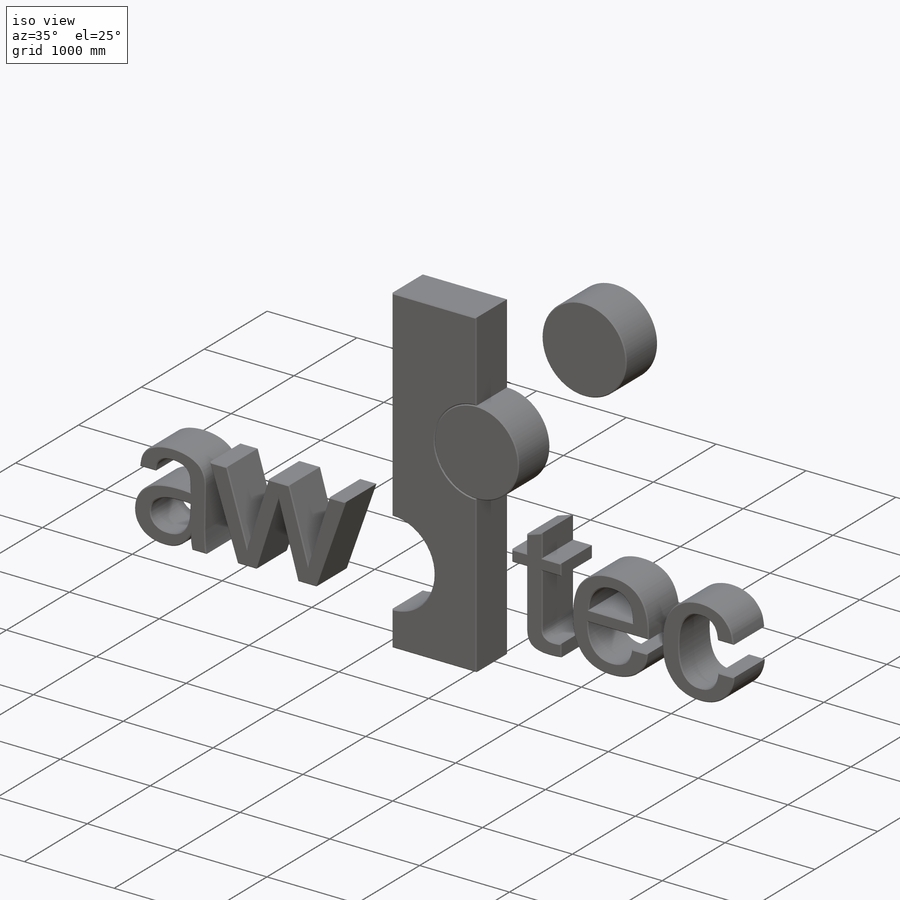
[diagram: iso view]
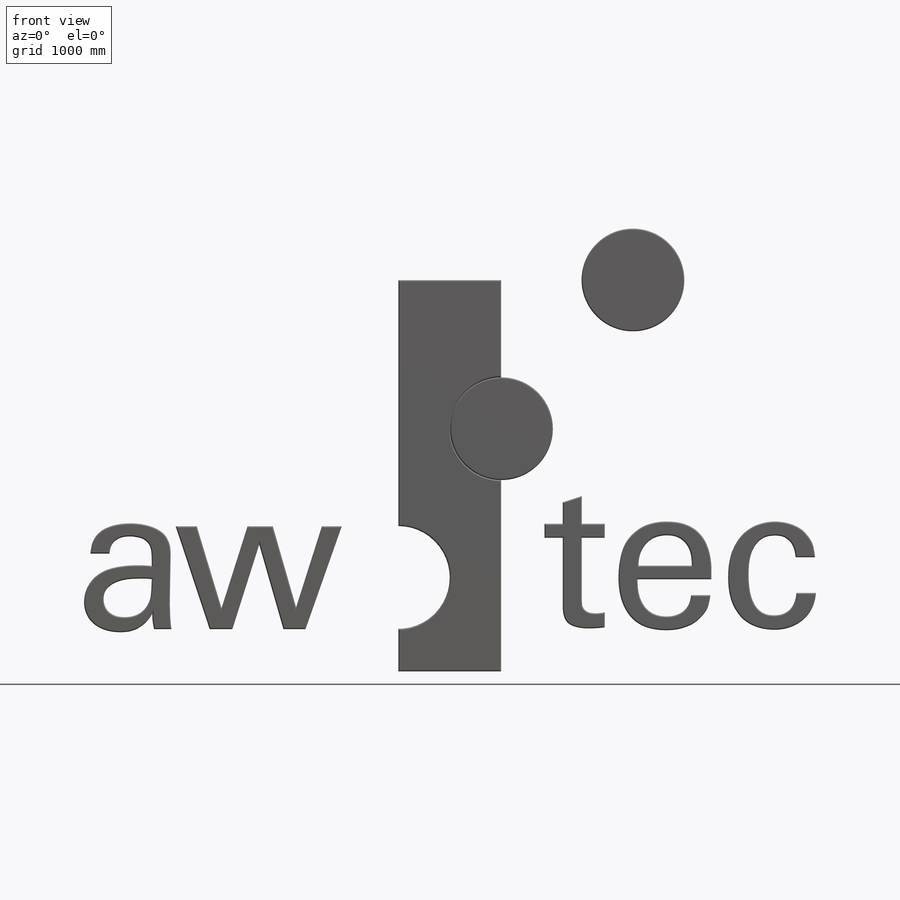
[diagram: front view]
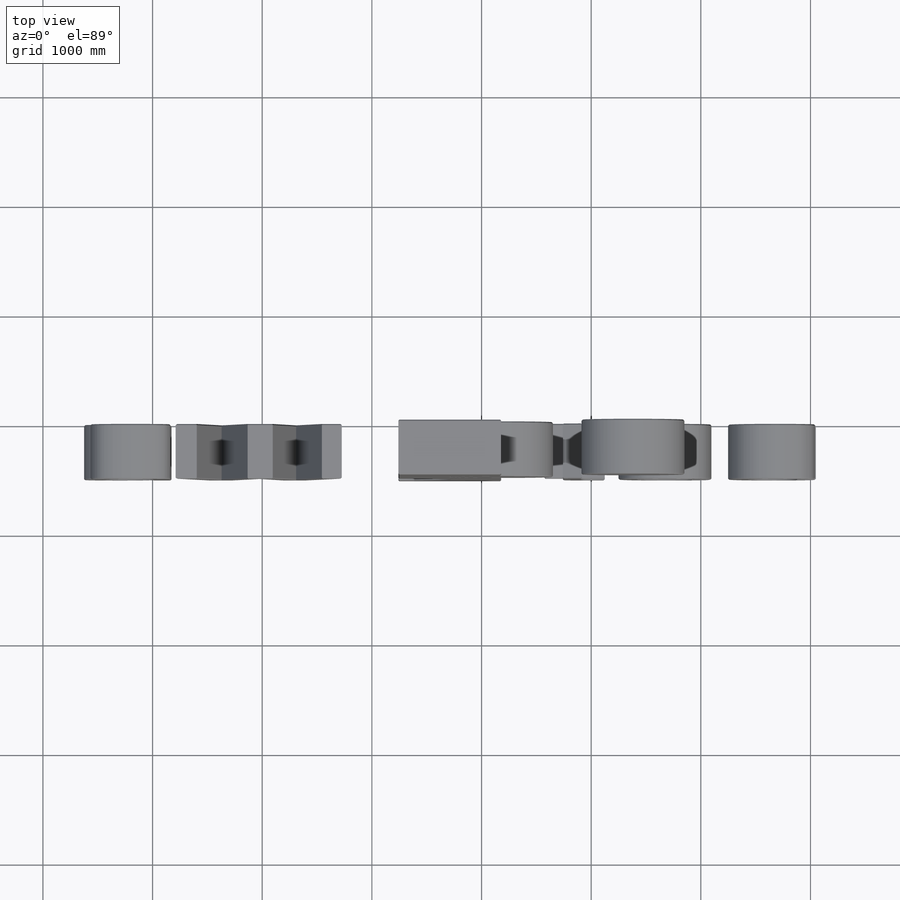
[diagram: top view]
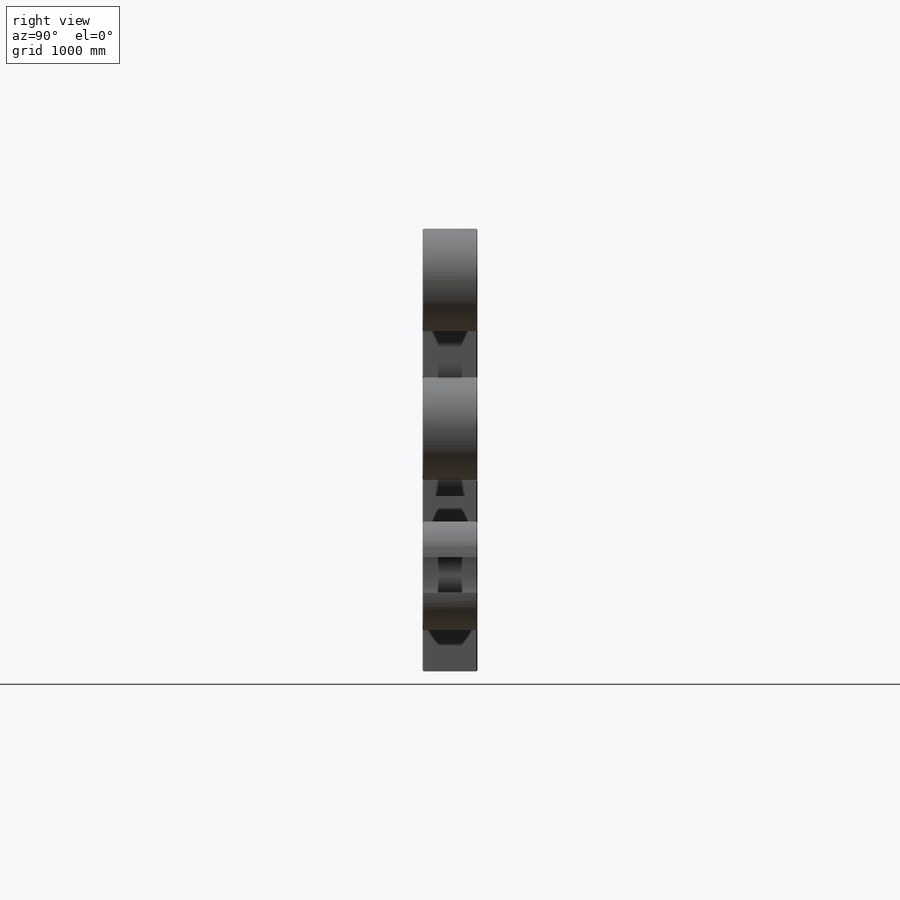
[diagram: right view]
SOLIDWORKS PART (.sldprt)
format: sldprt  version: not decoded by parser v0  size: 3,539,968 bytes
history: native  units: mm
features: chamfer x13, plane x3, sketch x2, extrude x2, material x1 (+9 scaffold rows collapsed)
feature tree (30):
  scaffold x9  (default folders/planes/origin — collapsed)
  material  "Material <nicht festgelegt>"
  plane  "Vorne"
  plane  "Oben"
  plane  "Rechts"
  sketch  "Model"
  extrude  "Aufsatz-Linear austragen1"  Depth=5mm
  extrude  "Aufsatz-Linear austragen2"  [1 undecoded]
  sketch  "Model<3>"  dims[D1=5.0mm]
  chamfer  "Fase1"  Distance=0.1mm Angle=45deg
  chamfer  "Fase2"  Distance=0.1mm Angle=45deg
  chamfer  "Fase3"  Distance=0.1mm Angle=45deg
  chamfer  "Fase4"  Distance=0.1mm Angle=45deg
  chamfer  "Fase5"  Distance=0.1mm Angle=45deg
  chamfer  "Fase6"  Distance=0.1mm Angle=45deg
  chamfer  "Fase7"  Distance=0.1mm Angle=45deg
  chamfer  "Fase8"  Distance=0.1mm Angle=45deg
  chamfer  "Fase9"  Distance=0.1mm Angle=45deg
  chamfer  "Fase10"  Distance=0.1mm Angle=45deg
  chamfer  "Fase11"  Distance=0.1mm Angle=45deg
  chamfer  "Fase12"  Distance=0.1mm Angle=45deg
  chamfer  "Fase13"  Distance=0.1mm Angle=45deg
decode coverage: 15 of 17 modeling features carry decoded parameters
note: 1 parameter value undecoded
note: suppression state not decoded; provenance and decode notes live in map.json
